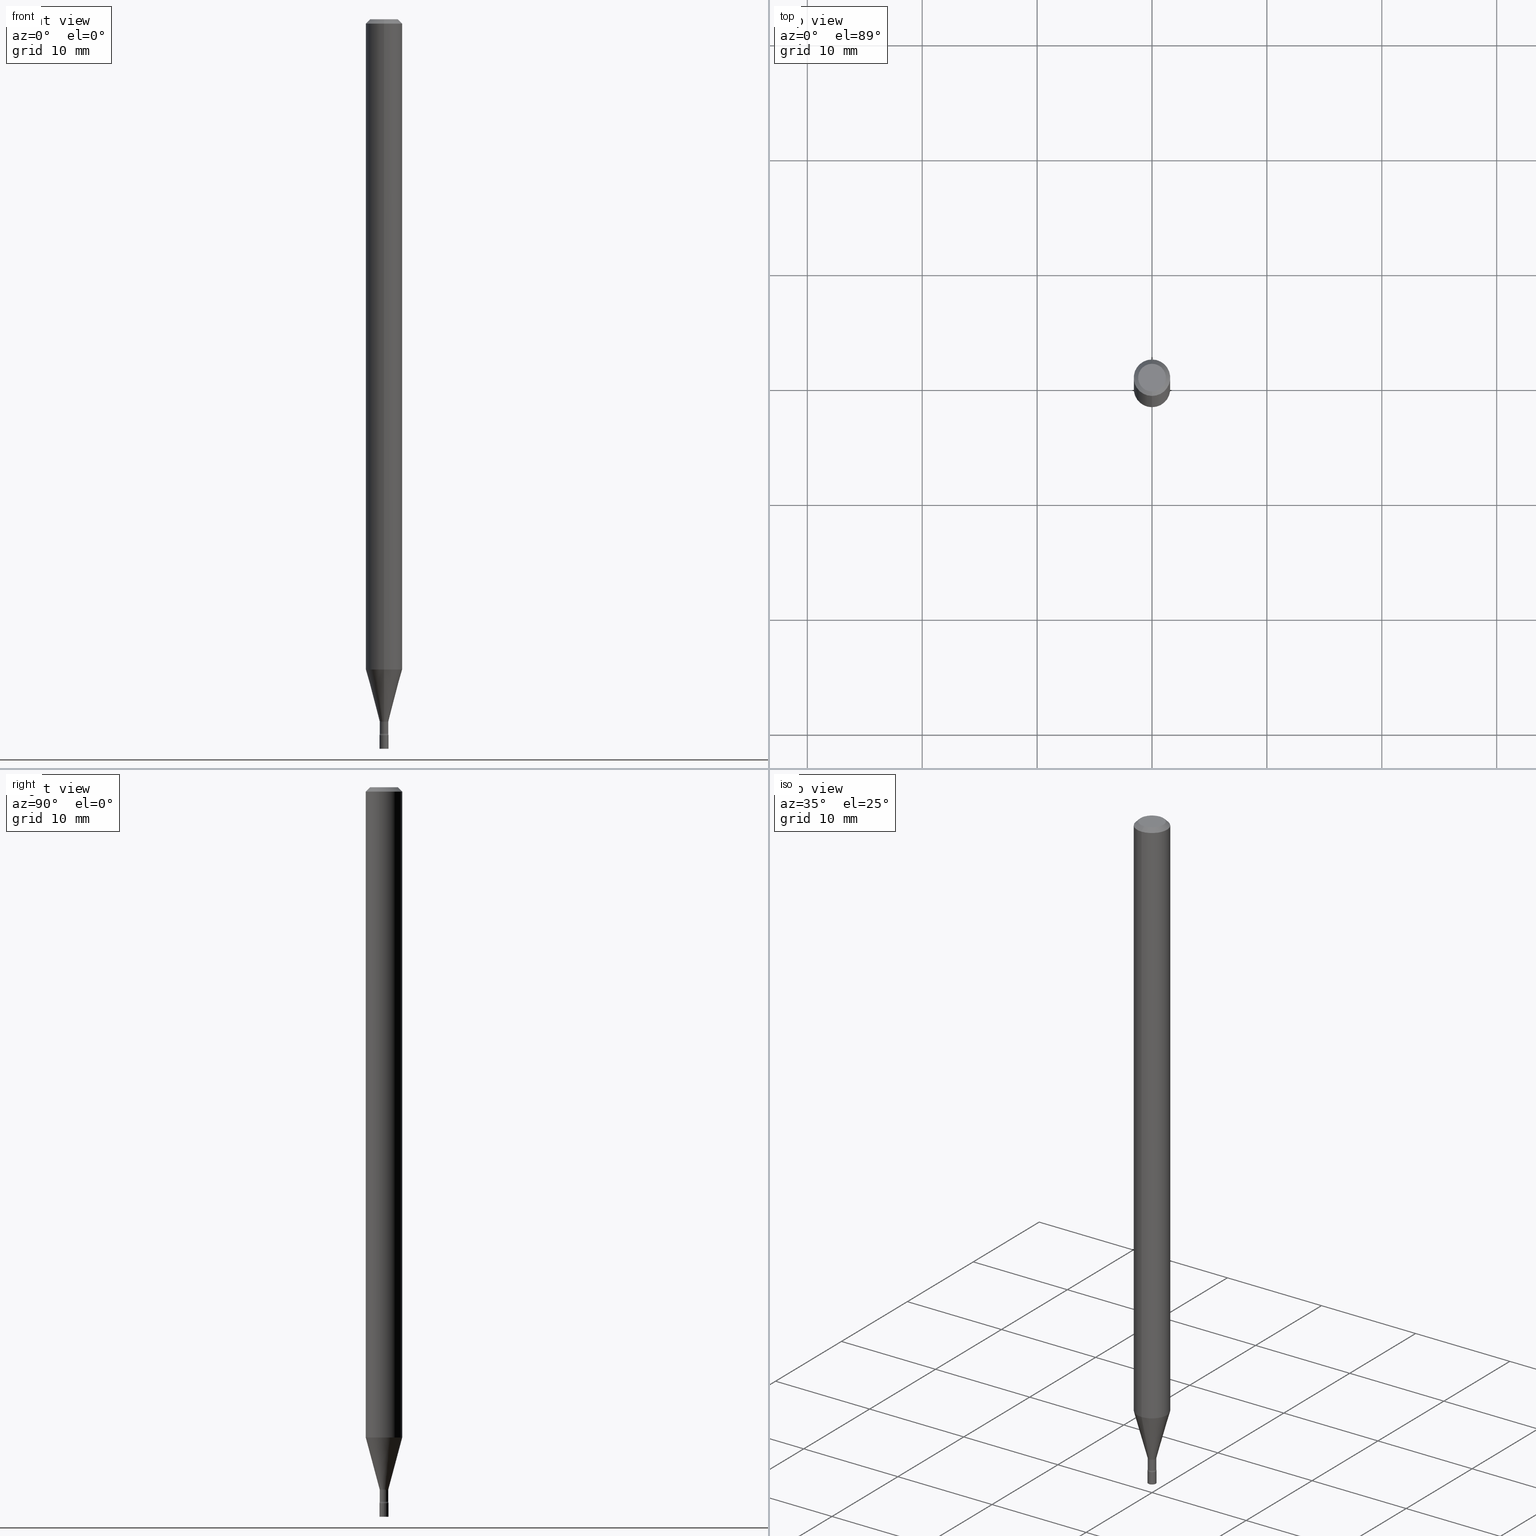
[diagram: canonical four-view strip — front | top / right | iso, engineering-drawing reading convention]
A machine part, canonical four-view strip (front | top / right | iso — engineering-drawing reading convention). The complete STEP part file that produces these views, byte-faithful:
ISO-10303-21;
HEADER;
FILE_DESCRIPTION (( 'STEP AP203' ),
    '1' );
FILE_NAME ('03513.STEP',
    '2024-03-08T21:36:42',
    ( '' ),
    ( '' ),
    'SwSTEP 2.0',
    'SolidWorks 2023',
    '' );
FILE_SCHEMA (( 'CONFIG_CONTROL_DESIGN' ));
ENDSEC;

DATA;
#1 = CIRCLE ( 'NONE', #208, 0.04749999999999999362 ) ;
#2 = CARTESIAN_POINT ( 'NONE',  ( 4.440892098500625669E-16, 0.06250000000000000000, -2.182170452178154301E-16 ) ) ;
#3 = EDGE_CURVE ( 'NONE', #130, #312, #444, .T. ) ;
#4 = DIRECTION ( 'NONE',  ( -2.445474822257542446E-29, 3.491472723485046881E-15, 1.000000000000000000 ) ) ;
#5 = APPROVAL_STATUS ( 'not_yet_approved' ) ;
#6 = ORIENTED_EDGE ( 'NONE', *, *, #464, .T. ) ;
#7 = CC_DESIGN_PERSON_AND_ORGANIZATION_ASSIGNMENT ( #296, #62, ( #203 ) ) ;
#8 = AXIS2_PLACEMENT_3D ( 'NONE', #186, #25, #350 ) ;
#9 = ORGANIZATION ( 'UNSPECIFIED', 'UNSPECIFIED', '' ) ;
#10 = LINE ( 'NONE', #487, #150 ) ;
#11 = ORIENTED_EDGE ( 'NONE', *, *, #328, .F. ) ;
#12 = ADVANCED_FACE ( 'NONE', ( #469 ), #112, .T. ) ;
#13 = PERSON_AND_ORGANIZATION ( #170, #9 ) ;
#14 = DIRECTION ( 'NONE',  ( -2.445474822257542446E-29, 3.491472723485046881E-15, 1.000000000000000000 ) ) ;
#15 = ORIENTED_EDGE ( 'NONE', *, *, #491, .F. ) ;
#16 = TOROIDAL_SURFACE ( 'NONE', #249, 0.02954999999999999988, 0.01500000000000002373 ) ;
#17 = CALENDAR_DATE ( 2024, 8, 3 ) ;
#18 = CYLINDRICAL_SURFACE ( 'NONE', #139, 0.01549999999999999989 ) ;
#19 = DIRECTION ( 'NONE',  ( 1.000000000000000000, -6.982962677686238312E-15, 0.000000000000000000 ) ) ;
#20 = EDGE_LOOP ( 'NONE', ( #212, #191 ) ) ;
#21 = PERSON_AND_ORGANIZATION_ROLE ( 'creator' ) ;
#22 = DIRECTION ( 'NONE',  ( -6.982962677686265922E-15, -1.000000000000000000, 0.000000000000000000 ) ) ;
#23 = VERTEX_POINT ( 'NONE', #157 ) ;
#24 = PERSON_AND_ORGANIZATION ( #170, #9 ) ;
#25 = DIRECTION ( 'NONE',  ( -2.445474822257542446E-29, 3.491472723485046881E-15, 1.000000000000000000 ) ) ;
#26 = CONICAL_SURFACE ( 'NONE', #318, 0.01506111260566398227, 0.2617993877991499074 ) ;
#27 = VECTOR ( 'NONE', #435, 39.37007874015748143 ) ;
#28 = VERTEX_POINT ( 'NONE', #408 ) ;
#29 = CARTESIAN_POINT ( 'NONE',  ( -1.051711872097229259E-16, -0.01506111260567238180, -2.405092501787273296 ) ) ;
#30 = ORIENTED_EDGE ( 'NONE', *, *, #519, .F. ) ;
#31 = DIRECTION ( 'NONE',  ( -6.982962677686265133E-15, -1.000000000000000000, 0.000000000000000000 ) ) ;
#32 = EDGE_CURVE ( 'NONE', #325, #179, #160, .T. ) ;
#33 = ORIENTED_EDGE ( 'NONE', *, *, #449, .T. ) ;
#34 = LINE ( 'NONE', #470, #356 ) ;
#35 = CIRCLE ( 'NONE', #462, 0.01455000000000000737 ) ;
#36 = DIRECTION ( 'NONE',  ( -6.982962677686265922E-15, -1.000000000000000000, 3.491472723485047276E-15 ) ) ;
#37 = LINE ( 'NONE', #155, #484 ) ;
#38 = EDGE_CURVE ( 'NONE', #370, #183, #90, .T. ) ;
#39 = DIRECTION ( 'NONE',  ( -6.982962677686265922E-15, -1.000000000000000000, 3.491472723485046881E-15 ) ) ;
#40 = CARTESIAN_POINT ( 'NONE',  ( 3.668212233386320885E-31, -5.237209085227580700E-17, -0.01500000000000003067 ) ) ;
#41 = DIRECTION ( 'NONE',  ( -2.445468806185136597E-29, 3.491481338843145583E-15, 1.000000000000000000 ) ) ;
#42 = APPLICATION_PROTOCOL_DEFINITION ( 'international standard', 'config_control_design', 1994, #343 ) ;
#43 = CIRCLE ( 'NONE', #451, 0.01549999999999999989 ) ;
#44 = APPLICATION_PROTOCOL_DEFINITION ( 'international standard', 'config_control_design', 1994, #46 ) ;
#45 = ADVANCED_FACE ( 'NONE', ( #280 ), #292, .F. ) ;
#46 = APPLICATION_CONTEXT ( 'configuration controlled 3d designs of mechanical parts and assemblies' ) ;
#47 = ORIENTED_EDGE ( 'NONE', *, *, #89, .F. ) ;
#48 = DIRECTION ( 'NONE',  ( 4.937700262164548042E-15, 0.7071067811865451302, -0.7071067811865499042 ) ) ;
#49 = AXIS2_PLACEMENT_3D ( 'NONE', #274, #354, #230 ) ;
#50 = AXIS2_PLACEMENT_3D ( 'NONE', #481, #441, #235 ) ;
#51 = ADVANCED_FACE ( 'NONE', ( #120 ), #317, .T. ) ;
#52 = ORIENTED_EDGE ( 'NONE', *, *, #136, .T. ) ;
#53 = FACE_OUTER_BOUND ( 'NONE', #341, .T. ) ;
#54 = ORIENTED_EDGE ( 'NONE', *, *, #387, .F. ) ;
#55 = APPROVAL_STATUS ( 'not_yet_approved' ) ;
#56 = DIRECTION ( 'NONE',  ( -2.445474822257542446E-29, 3.491472723485046881E-15, 1.000000000000000000 ) ) ;
#57 = VECTOR ( 'NONE', #360, 39.37007874015748143 ) ;
#58 = ADVANCED_FACE ( 'NONE', ( #404 ), #364, .T. ) ;
#59 = CC_DESIGN_APPROVAL ( #514, ( #203 ) ) ;
#60 = DIRECTION ( 'NONE',  ( -2.445468806185136597E-29, 3.491481338843145583E-15, 1.000000000000000000 ) ) ;
#61 = ORIENTED_EDGE ( 'NONE', *, *, #287, .T. ) ;
#62 = PERSON_AND_ORGANIZATION_ROLE ( 'design_supplier' ) ;
#63 = CARTESIAN_POINT ( 'NONE',  ( 5.998734981572139453E-29, -8.564603724182235719E-15, -2.452999999999999847 ) ) ;
#64 = APPROVAL ( #55, 'UNSPECIFIED' ) ;
#65 = VERTEX_POINT ( 'NONE', #518 ) ;
#66 = APPROVAL_DATE_TIME ( #134, #514 ) ;
#67 = DIRECTION ( 'NONE',  ( 2.445474822257542446E-29, -3.491472723485046487E-15, -1.000000000000000000 ) ) ;
#68 = ORIENTED_EDGE ( 'NONE', *, *, #243, .T. ) ;
#69 = CARTESIAN_POINT ( 'NONE',  ( -4.364351673553916201E-16, -0.06250000000000000000, 2.182170452178154301E-16 ) ) ;
#70 = AXIS2_PLACEMENT_3D ( 'NONE', #81, #363, #314 ) ;
#71 = AXIS2_PLACEMENT_3D ( 'NONE', #453, #283, #486 ) ;
#72 = EDGE_LOOP ( 'NONE', ( #95, #226, #510, #15 ) ) ;
#73 = FACE_OUTER_BOUND ( 'NONE', #309, .T. ) ;
#74 = ORIENTED_EDGE ( 'NONE', *, *, #358, .T. ) ;
#75 = DIRECTION ( 'NONE',  ( -1.000000000000000000, 6.982962677686265922E-15, -4.883557194083112340E-29 ) ) ;
#76 = CARTESIAN_POINT ( 'NONE',  ( 1.067590460480150075E-16, 0.01454999999999146212, -2.447746667724196357 ) ) ;
#77 = ADVANCED_FACE ( 'NONE', ( #83 ), #436, .F. ) ;
#78 = CARTESIAN_POINT ( 'NONE',  ( 5.881593158321180311E-29, -8.397314867448675411E-15, -2.405092501787273296 ) ) ;
#79 = AXIS2_PLACEMENT_3D ( 'NONE', #443, #236, #39 ) ;
#80 = APPROVAL_PERSON_ORGANIZATION ( #24, #514, #429 ) ;
#81 = CARTESIAN_POINT ( 'NONE',  ( 5.985888121363136129E-29, -8.546261812574526278E-15, -2.447746667724196357 ) ) ;
#82 = DIRECTION ( 'NONE',  ( -2.445474822257542446E-29, 3.491472723485046881E-15, 1.000000000000000000 ) ) ;
#83 = FACE_OUTER_BOUND ( 'NONE', #142, .T. ) ;
#84 = SECURITY_CLASSIFICATION ( '', '', #331 ) ;
#85 = APPROVAL ( #5, 'UNSPECIFIED' ) ;
#86 = APPROVAL_DATE_TIME ( #323, #85 ) ;
#87 = ORIENTED_EDGE ( 'NONE', *, *, #416, .T. ) ;
#88 = PERSON_AND_ORGANIZATION ( #170, #9 ) ;
#89 = EDGE_CURVE ( 'NONE', #422, #101, #192, .T. ) ;
#90 = CIRCLE ( 'NONE', #471, 0.01455000000000000217 ) ;
#91 = VERTEX_POINT ( 'NONE', #76 ) ;
#92 = AXIS2_PLACEMENT_3D ( 'NONE', #520, #75, #31 ) ;
#93 = AXIS2_PLACEMENT_3D ( 'NONE', #311, #197, #447 ) ;
#94 = APPROVAL_STATUS ( 'not_yet_approved' ) ;
#95 = ORIENTED_EDGE ( 'NONE', *, *, #245, .F. ) ;
#96 = CARTESIAN_POINT ( 'NONE',  ( 6.113672015462842613E-29, -8.728703347107864943E-15, -2.500000000000000000 ) ) ;
#97 = EDGE_CURVE ( 'NONE', #28, #23, #269, .T. ) ;
#98 = ORIENTED_EDGE ( 'NONE', *, *, #245, .T. ) ;
#99 = DATE_AND_TIME ( #290, #302 ) ;
#100 = CARTESIAN_POINT ( 'NONE',  ( 3.840629472727447874E-16, 0.04749999999999999362, -1.947592745229184119E-16 ) ) ;
#101 = VERTEX_POINT ( 'NONE', #215 ) ;
#102 = CONICAL_SURFACE ( 'NONE', #242, 0.01506111260566398227, 0.2617993877991499074 ) ;
#103 = COORDINATED_UNIVERSAL_TIME_OFFSET ( 5, 0, .BEHIND. ) ;
#104 = AXIS2_PLACEMENT_3D ( 'NONE', #210, #321, #415 ) ;
#105 = CC_DESIGN_PERSON_AND_ORGANIZATION_ASSIGNMENT ( #492, #247, ( #177 ) ) ;
#106 = CARTESIAN_POINT ( 'NONE',  ( -4.364351673553912750E-16, -0.06250000000000005551, -0.01499999999999981209 ) ) ;
#107 = EDGE_LOOP ( 'NONE', ( #189, #353, #400, #305 ) ) ;
#108 = DIRECTION ( 'NONE',  ( -2.445474822257542446E-29, 3.491472723485046881E-15, 1.000000000000000000 ) ) ;
#109 = DIRECTION ( 'NONE',  ( -6.982962677686268288E-15, -1.000000000000000000, 0.000000000000000000 ) ) ;
#110 = LINE ( 'NONE', #267, #27 ) ;
#111 = ADVANCED_FACE ( 'NONE', ( #255 ), #102, .T. ) ;
#112 = CYLINDRICAL_SURFACE ( 'NONE', #483, 0.01455000000000000390 ) ;
#113 = TOROIDAL_SURFACE ( 'NONE', #49, 0.02954999999999999988, 0.01500000000000002373 ) ;
#114 = CARTESIAN_POINT ( 'NONE',  ( 4.440892098501173434E-16, 0.06249999999999995143, -0.01500000000000024751 ) ) ;
#115 = CIRCLE ( 'NONE', #194, 0.01499999999999999424 ) ;
#116 = ORIENTED_EDGE ( 'NONE', *, *, #425, .T. ) ;
#117 = CYLINDRICAL_SURFACE ( 'NONE', #382, 0.01549999999999999989 ) ;
#118 = ORIENTED_EDGE ( 'NONE', *, *, #239, .T. ) ;
#119 = DIRECTION ( 'NONE',  ( -2.445468806185136877E-29, 3.491481338843145188E-15, 1.000000000000000000 ) ) ;
#120 = FACE_OUTER_BOUND ( 'NONE', #348, .T. ) ;
#121 = CARTESIAN_POINT ( 'NONE',  ( -3.773273898774340269E-16, -0.04749999999999999362, 1.369306342081609945E-16 ) ) ;
#122 = CARTESIAN_POINT ( 'NONE',  ( 5.998734981572139453E-29, -8.564603724182235719E-15, -2.452999999999999847 ) ) ;
#123 = LINE ( 'NONE', #448, #168 ) ;
#124 =( LENGTH_UNIT ( ) NAMED_UNIT ( * ) SI_UNIT ( $, .METRE. ) );
#125 = DIRECTION ( 'NONE',  ( 1.000000000000000000, 0.000000000000000000, 0.000000000000000000 ) ) ;
#126 = AXIS2_PLACEMENT_3D ( 'NONE', #276, #407, #232 ) ;
#127 = EDGE_CURVE ( 'NONE', #91, #130, #35, .T. ) ;
#128 = CARTESIAN_POINT ( 'NONE',  ( 5.448635687293979942E-29, -7.779169390438593115E-15, -2.228048163777072599 ) ) ;
#129 = ADVANCED_FACE ( 'NONE', ( #393 ), #500, .F. ) ;
#130 = VERTEX_POINT ( 'NONE', #135 ) ;
#131 = ORIENTED_EDGE ( 'NONE', *, *, #316, .F. ) ;
#132 = AXIS2_PLACEMENT_3D ( 'NONE', #198, #275, #361 ) ;
#133 = DIRECTION ( 'NONE',  ( 7.105427357600999492E-15, 1.000000000000000000, 0.000000000000000000 ) ) ;
#134 = DATE_AND_TIME ( #17, #496 ) ;
#135 = CARTESIAN_POINT ( 'NONE',  ( -1.016021069602753630E-16, -0.01455000000000855262, -2.447746667724196357 ) ) ;
#136 = EDGE_CURVE ( 'NONE', #312, #289, #216, .T. ) ;
#137 = CARTESIAN_POINT ( 'NONE',  ( 3.316907271900976096E-16, 0.04749999999999999362, -1.803021144442290575E-16 ) ) ;
#138 = ORIENTED_EDGE ( 'NONE', *, *, #376, .F. ) ;
#139 = AXIS2_PLACEMENT_3D ( 'NONE', #211, #426, #304 ) ;
#140 = VECTOR ( 'NONE', #164, 39.37007874015748143 ) ;
#141 = CARTESIAN_POINT ( 'NONE',  ( 1.033839680531544349E-16, 0.01454999999999158876, -2.408974787463811218 ) ) ;
#142 = EDGE_LOOP ( 'NONE', ( #379, #301, #169, #52 ) ) ;
#143 = EDGE_CURVE ( 'NONE', #463, #183, #405, .T. ) ;
#144 = PLANE ( 'NONE',  #300 ) ;
#145 = ORIENTED_EDGE ( 'NONE', *, *, #287, .F. ) ;
#146 = DIRECTION ( 'NONE',  ( -2.445474822257542446E-29, 3.491472723485046487E-15, 1.000000000000000000 ) ) ;
#147 = EDGE_LOOP ( 'NONE', ( #118, #6, #459, #131 ) ) ;
#148 = AXIS2_PLACEMENT_3D ( 'NONE', #319, #82, #475 ) ;
#149 = DIRECTION ( 'NONE',  ( -2.445474822257542446E-29, 3.491472723485046881E-15, 1.000000000000000000 ) ) ;
#150 = VECTOR ( 'NONE', #490, 39.37007874015748854 ) ;
#151 = ORIENTED_EDGE ( 'NONE', *, *, #97, .F. ) ;
#152 = CARTESIAN_POINT ( 'NONE',  ( 0.01549999999999999989, -8.836939268612002897E-15, -2.500000000000000000 ) ) ;
#153 = DIRECTION ( 'NONE',  ( -2.445474822257542446E-29, 3.491472723485046881E-15, 1.000000000000000000 ) ) ;
#154 = CC_DESIGN_DATE_AND_TIME_ASSIGNMENT ( #180, #220, ( #84 ) ) ;
#155 = CARTESIAN_POINT ( 'NONE',  ( -4.287811248607203282E-16, -0.06250000000000005551, -0.01499999999999981209 ) ) ;
#156 = MANIFOLD_SOLID_BREP ( 'Body-Move/Copy2[2]', #372 ) ;
#157 = CARTESIAN_POINT ( 'NONE',  ( 4.440892098501168504E-16, 0.06249999999999221456, -2.228048163777073043 ) ) ;
#158 = ADVANCED_FACE ( 'NONE', ( #461 ), #225, .T. ) ;
#159 = CARTESIAN_POINT ( 'NONE',  ( -0.01549999999999999989, -8.536519411602235887E-15, -2.452999999999999847 ) ) ;
#160 = CIRCLE ( 'NONE', #184, 0.06250000000000000000 ) ;
#161 = CONICAL_SURFACE ( 'NONE', #512, 0.06250000000000000000, 0.7853981633974483900 ) ;
#162 = AXIS2_PLACEMENT_3D ( 'NONE', #326, #418, #125 ) ;
#163 = DIRECTION ( 'NONE',  ( 1.000000000000000000, -7.105427357601001070E-15, 4.926315403034375454E-29 ) ) ;
#164 = DIRECTION ( 'NONE',  ( -2.445474822257542166E-29, 3.491472723485046487E-15, 1.000000000000000000 ) ) ;
#165 = CALENDAR_DATE ( 2024, 8, 3 ) ;
#166 = CIRCLE ( 'NONE', #270, 0.01455000000000000737 ) ;
#167 = EDGE_CURVE ( 'NONE', #130, #91, #166, .T. ) ;
#168 = VECTOR ( 'NONE', #48, 39.37007874015748143 ) ;
#169 = ORIENTED_EDGE ( 'NONE', *, *, #3, .T. ) ;
#170 = PERSON ( 'UNSPECIFIED', 'UNSPECIFIED', 'UNSPECIFIED', ('UNSPECIFIED'), ('UNSPECIFIED'), ('UNSPECIFIED') ) ;
#171 = EDGE_LOOP ( 'NONE', ( #229, #431, #116, #263 ) ) ;
#172 = DIRECTION ( 'NONE',  ( 6.982962677686265922E-15, 1.000000000000000000, -3.491472723485046487E-15 ) ) ;
#173 = CIRCLE ( 'NONE', #227, 0.01549999999999999989 ) ;
#174 = ORIENTED_EDGE ( 'NONE', *, *, #464, .F. ) ;
#175 = LOCAL_TIME ( 16, 36, 42.00000000000000000, #455 ) ;
#176 = DIRECTION ( 'NONE',  ( -6.982962677686265922E-15, -1.000000000000000000, 3.491472723485047276E-15 ) ) ;
#177 = PRODUCT_DEFINITION ( 'UNKNOWN', '', #203, #371 ) ;
#178 = CARTESIAN_POINT ( 'NONE',  ( 5.891072697629218951E-29, -8.410890516173528803E-15, -2.408974787463811218 ) ) ;
#179 = VERTEX_POINT ( 'NONE', #106 ) ;
#180 = DATE_AND_TIME ( #465, #334 ) ;
#181 = LINE ( 'NONE', #214, #445 ) ;
#182 = ADVANCED_FACE ( 'NONE', ( #505 ), #144, .T. ) ;
#183 = VERTEX_POINT ( 'NONE', #141 ) ;
#184 = AXIS2_PLACEMENT_3D ( 'NONE', #200, #153, #516 ) ;
#185 = AXIS2_PLACEMENT_3D ( 'NONE', #40, #403, #193 ) ;
#186 = CARTESIAN_POINT ( 'NONE',  ( 0.000000000000000000, 0.000000000000000000, 0.000000000000000000 ) ) ;
#187 = ORIENTED_EDGE ( 'NONE', *, *, #89, .T. ) ;
#188 = CYLINDRICAL_SURFACE ( 'NONE', #148, 0.01455000000000000390 ) ;
#189 = ORIENTED_EDGE ( 'NONE', *, *, #127, .F. ) ;
#190 = CARTESIAN_POINT ( 'NONE',  ( 0.000000000000000000, 0.000000000000000000, 0.000000000000000000 ) ) ;
#191 = ORIENTED_EDGE ( 'NONE', *, *, #416, .F. ) ;
#192 = CIRCLE ( 'NONE', #488, 0.01549999999999999989 ) ;
#193 = DIRECTION ( 'NONE',  ( -6.982962677686265922E-15, -1.000000000000000000, 3.483106191921935554E-15 ) ) ;
#194 = AXIS2_PLACEMENT_3D ( 'NONE', #282, #163, #450 ) ;
#195 = DIRECTION ( 'NONE',  ( -6.982962677686266711E-15, -1.000000000000000000, 0.000000000000000000 ) ) ;
#196 = ADVANCED_FACE ( 'NONE', ( #265 ), #297, .T. ) ;
#197 = DIRECTION ( 'NONE',  ( -2.445468806185136597E-29, 3.491481338843145583E-15, 1.000000000000000000 ) ) ;
#198 = CARTESIAN_POINT ( 'NONE',  ( 3.668212233386320885E-31, -5.237209085227580700E-17, -0.01500000000000003067 ) ) ;
#199 = FACE_OUTER_BOUND ( 'NONE', #402, .T. ) ;
#200 = CARTESIAN_POINT ( 'NONE',  ( 3.668212233386320885E-31, -5.237209085227580700E-17, -0.01500000000000003067 ) ) ;
#201 = EDGE_CURVE ( 'NONE', #101, #422, #173, .T. ) ;
#202 = AXIS2_PLACEMENT_3D ( 'NONE', #298, #218, #133 ) ;
#203 = PRODUCT_DEFINITION_FORMATION_WITH_SPECIFIED_SOURCE ( 'ANY', '', #460, .NOT_KNOWN. ) ;
#204 = PERSON_AND_ORGANIZATION ( #170, #9 ) ;
#205 = ADVANCED_FACE ( 'NONE', ( #53 ), #18, .T. ) ;
#206 = EDGE_LOOP ( 'NONE', ( #251, #217, #61, #30 ) ) ;
#207 = LINE ( 'NONE', #2, #140 ) ;
#208 = AXIS2_PLACEMENT_3D ( 'NONE', #390, #108, #381 ) ;
#209 = ADVANCED_FACE ( 'NONE', ( #466 ), #161, .T. ) ;
#210 = CARTESIAN_POINT ( 'NONE',  ( 5.891087190195964940E-29, -8.410869761993084079E-15, -2.408974787463811218 ) ) ;
#211 = CARTESIAN_POINT ( 'NONE',  ( 0.000000000000000000, 0.000000000000000000, 0.000000000000000000 ) ) ;
#212 = ORIENTED_EDGE ( 'NONE', *, *, #239, .F. ) ;
#213 = PERSON_AND_ORGANIZATION ( #170, #9 ) ;
#214 = CARTESIAN_POINT ( 'NONE',  ( 1.033839680530945924E-16, 0.01455000000000000390, -5.080092812670745261E-17 ) ) ;
#215 = CARTESIAN_POINT ( 'NONE',  ( 0.01549999999999999989, -8.672839645686373673E-15, -2.452999999999999847 ) ) ;
#216 = CIRCLE ( 'NONE', #413, 0.01549999999999999989 ) ;
#217 = ORIENTED_EDGE ( 'NONE', *, *, #433, .T. ) ;
#218 = DIRECTION ( 'NONE',  ( 1.000000000000000000, -7.105427357601001070E-15, 4.926315403034375454E-29 ) ) ;
#219 = ORIENTED_EDGE ( 'NONE', *, *, #143, .T. ) ;
#220 = DATE_TIME_ROLE ( 'classification_date' ) ;
#221 = DIRECTION ( 'NONE',  ( 6.982962677686265922E-15, 1.000000000000000000, -3.483106191921935554E-15 ) ) ;
#222 = ADVANCED_FACE ( 'NONE', ( #332 ), #16, .F. ) ;
#223 = ORIENTED_EDGE ( 'NONE', *, *, #491, .T. ) ;
#224 = CALENDAR_DATE ( 2024, 8, 3 ) ;
#225 = CYLINDRICAL_SURFACE ( 'NONE', #8, 0.06250000000000000000 ) ;
#226 = ORIENTED_EDGE ( 'NONE', *, *, #387, .T. ) ;
#227 = AXIS2_PLACEMENT_3D ( 'NONE', #421, #497, #19 ) ;
#228 = PLANE ( 'NONE',  #427 ) ;
#229 = ORIENTED_EDGE ( 'NONE', *, *, #243, .F. ) ;
#230 = DIRECTION ( 'NONE',  ( -6.982962677686265922E-15, -1.000000000000000000, 3.491472723485047276E-15 ) ) ;
#231 = VERTEX_POINT ( 'NONE', #100 ) ;
#232 = DIRECTION ( 'NONE',  ( -6.982962677686265922E-15, -1.000000000000000000, 0.000000000000000000 ) ) ;
#233 = CARTESIAN_POINT ( 'NONE',  ( 5.448635687293979942E-29, -7.779169390438593115E-15, -2.228048163777072599 ) ) ;
#234 = AXIS2_PLACEMENT_3D ( 'NONE', #482, #411, #36 ) ;
#235 = DIRECTION ( 'NONE',  ( -6.982962677686266711E-15, -1.000000000000000000, 3.491472723485046881E-15 ) ) ;
#236 = DIRECTION ( 'NONE',  ( -2.445474822257542446E-29, 3.491472723485046881E-15, 1.000000000000000000 ) ) ;
#237 = LINE ( 'NONE', #29, #57 ) ;
#238 = CARTESIAN_POINT ( 'NONE',  ( 5.881593158321180311E-29, -8.397314867448675411E-15, -2.405092501787273296 ) ) ;
#239 = EDGE_CURVE ( 'NONE', #335, #417, #43, .T. ) ;
#240 = DIRECTION ( 'NONE',  ( -2.445474822257542446E-29, 3.491472723485046881E-15, 1.000000000000000000 ) ) ;
#241 = LENGTH_MEASURE_WITH_UNIT ( LENGTH_MEASURE( 0.02539999999999999897 ), #124 );
#242 = AXIS2_PLACEMENT_3D ( 'NONE', #238, #479, #386 ) ;
#243 = EDGE_CURVE ( 'NONE', #91, #183, #181, .T. ) ;
#244 = DIRECTION ( 'NONE',  ( -2.445468806185136877E-29, 3.491481338843145188E-15, 1.000000000000000000 ) ) ;
#245 = EDGE_CURVE ( 'NONE', #355, #231, #1, .T. ) ;
#246 = ORIENTED_EDGE ( 'NONE', *, *, #425, .F. ) ;
#247 = PERSON_AND_ORGANIZATION_ROLE ( 'creator' ) ;
#248 = ADVANCED_FACE ( 'NONE', ( #338 ), #117, .T. ) ;
#249 = AXIS2_PLACEMENT_3D ( 'NONE', #178, #254, #176 ) ;
#250 = CIRCLE ( 'NONE', #320, 0.06250000000000000000 ) ;
#251 = ORIENTED_EDGE ( 'NONE', *, *, #503, .F. ) ;
#252 = CARTESIAN_POINT ( 'NONE',  ( 1.082359215041982407E-16, 0.01549999999999127076, -2.500000000000000000 ) ) ;
#253 = ORIENTED_EDGE ( 'NONE', *, *, #376, .T. ) ;
#254 = DIRECTION ( 'NONE',  ( -2.445474822257542446E-29, 3.491472723485046881E-15, 1.000000000000000000 ) ) ;
#255 = FACE_OUTER_BOUND ( 'NONE', #474, .T. ) ;
#256 = ORIENTED_EDGE ( 'NONE', *, *, #433, .F. ) ;
#257 = DIRECTION ( 'NONE',  ( 2.445474822257542446E-29, -3.491472723485046881E-15, -1.000000000000000000 ) ) ;
#258 = AXIS2_PLACEMENT_3D ( 'NONE', #137, #67, #172 ) ;
#259 = ORIENTED_EDGE ( 'NONE', *, *, #167, .T. ) ;
#260 = APPROVAL_PERSON_ORGANIZATION ( #344, #64, #456 ) ;
#261 = ADVANCED_FACE ( 'NONE', ( #73 ), #188, .T. ) ;
#262 = DIRECTION ( 'NONE',  ( -2.445474822257542446E-29, 3.491472723485046881E-15, 1.000000000000000000 ) ) ;
#263 = ORIENTED_EDGE ( 'NONE', *, *, #485, .F. ) ;
#264 = ADVANCED_BREP_SHAPE_REPRESENTATION ( '03513', ( #339, #156, #162 ), #310 ) ;
#265 = FACE_OUTER_BOUND ( 'NONE', #20, .T. ) ;
#266 = ORIENTED_EDGE ( 'NONE', *, *, #278, .T. ) ;
#267 = CARTESIAN_POINT ( 'NONE',  ( -1.016021069603352055E-16, -0.01455000000000000390, 5.080092812670745261E-17 ) ) ;
#268 = CARTESIAN_POINT ( 'NONE',  ( 0.000000000000000000, 0.000000000000000000, 0.000000000000000000 ) ) ;
#269 = CIRCLE ( 'NONE', #324, 0.06250000000000000000 ) ;
#270 = AXIS2_PLACEMENT_3D ( 'NONE', #507, #262, #22 ) ;
#271 = CC_DESIGN_SECURITY_CLASSIFICATION ( #84, ( #203 ) ) ;
#272 = DIRECTION ( 'NONE',  ( -2.445468806185136597E-29, 3.491481338843145583E-15, 1.000000000000000000 ) ) ;
#273 = DIRECTION ( 'NONE',  ( -1.000000000000000000, 6.982962677686265922E-15, -4.883557194083112340E-29 ) ) ;
#274 = CARTESIAN_POINT ( 'NONE',  ( 5.891072697629218951E-29, -8.410890516173528803E-15, -2.408974787463811218 ) ) ;
#275 = DIRECTION ( 'NONE',  ( 2.445474822257542446E-29, -3.491472723485046881E-15, -1.000000000000000000 ) ) ;
#276 = CARTESIAN_POINT ( 'NONE',  ( 5.998749738997751028E-29, -8.564582590708820271E-15, -2.452999999999999847 ) ) ;
#277 = DIRECTION ( 'NONE',  ( -6.982962677686266711E-15, -1.000000000000000000, 3.491472723485047276E-15 ) ) ;
#278 = EDGE_CURVE ( 'NONE', #28, #179, #509, .T. ) ;
#279 = CARTESIAN_POINT ( 'NONE',  ( -1.016021069602762751E-16, -0.01455000000000841384, -2.408974787463811218 ) ) ;
#280 = FACE_OUTER_BOUND ( 'NONE', #107, .T. ) ;
#281 =( CONVERSION_BASED_UNIT ( 'INCH', #241 ) LENGTH_UNIT ( ) NAMED_UNIT ( #472 ) );
#282 = CARTESIAN_POINT ( 'NONE',  ( 2.099653784171694835E-16, 0.02954999999999145810, -2.447746667724196357 ) ) ;
#283 = DIRECTION ( 'NONE',  ( -2.445474822257542446E-29, 3.491472723485046881E-15, 1.000000000000000000 ) ) ;
#284 = VECTOR ( 'NONE', #399, 39.37007874015748143 ) ;
#285 = CIRCLE ( 'NONE', #71, 0.01506111260566398227 ) ;
#286 = DIRECTION ( 'NONE',  ( -6.982962677686265922E-15, -1.000000000000000000, 4.370956789862821150E-15 ) ) ;
#287 = EDGE_CURVE ( 'NONE', #65, #28, #237, .T. ) ;
#288 =( NAMED_UNIT ( * ) PLANE_ANGLE_UNIT ( ) SI_UNIT ( $, .RADIAN. ) );
#289 = VERTEX_POINT ( 'NONE', #352 ) ;
#290 = CALENDAR_DATE ( 2024, 8, 3 ) ;
#291 = ADVANCED_FACE ( 'NONE', ( #199 ), #113, .F. ) ;
#292 = TOROIDAL_SURFACE ( 'NONE', #70, 0.02955000000000000335, 0.01499999999999999771 ) ;
#293 = CIRCLE ( 'NONE', #104, 0.01455000000000000217 ) ;
#294 = ORIENTED_EDGE ( 'NONE', *, *, #32, .F. ) ;
#295 = CARTESIAN_POINT ( 'NONE',  ( 5.985902847184320644E-29, -8.546240724360448056E-15, -2.447746667724196357 ) ) ;
#296 = PERSON_AND_ORGANIZATION ( #170, #9 ) ;
#297 = PLANE ( 'NONE',  #374 ) ;
#298 = CARTESIAN_POINT ( 'NONE',  ( 2.099653784171684728E-16, 0.02954999999999158994, -2.408974787463811218 ) ) ;
#299 = PRODUCT_DEFINITION_SHAPE ( 'NONE', 'NONE',  #177 ) ;
#300 = AXIS2_PLACEMENT_3D ( 'NONE', #63, #306, #468 ) ;
#301 = ORIENTED_EDGE ( 'NONE', *, *, #167, .F. ) ;
#302 = LOCAL_TIME ( 16, 36, 42.00000000000000000, #392 ) ;
#303 = PRODUCT_RELATED_PRODUCT_CATEGORY ( 'detail', '', ( #460 ) ) ;
#304 = DIRECTION ( 'NONE',  ( 1.000000000000000000, -6.982962677686266711E-15, 4.876176775795935232E-29 ) ) ;
#305 = ORIENTED_EDGE ( 'NONE', *, *, #3, .F. ) ;
#306 = DIRECTION ( 'NONE',  ( -2.438088387897960049E-29, 3.491481338843145188E-15, 1.000000000000000000 ) ) ;
#307 = EDGE_LOOP ( 'NONE', ( #397, #454, #266, #294 ) ) ;
#308 = DIRECTION ( 'NONE',  ( -6.982962677686265922E-15, -1.000000000000000000, 3.491472723485046487E-15 ) ) ;
#309 = EDGE_LOOP ( 'NONE', ( #259, #68, #504, #246 ) ) ;
#310 =( GEOMETRIC_REPRESENTATION_CONTEXT ( 3 ) GLOBAL_UNCERTAINTY_ASSIGNED_CONTEXT ( ( #495 ) ) GLOBAL_UNIT_ASSIGNED_CONTEXT ( ( #281, #288, #414 ) ) REPRESENTATION_CONTEXT ( 'NONE', 'WORKASPACE' ) );
#311 = CARTESIAN_POINT ( 'NONE',  ( 6.113672015462842613E-29, -8.728703347107864943E-15, -2.500000000000000000 ) ) ;
#312 = VERTEX_POINT ( 'NONE', #517 ) ;
#313 = DIRECTION ( 'NONE',  ( -6.982962677686266711E-15, -1.000000000000000000, 0.000000000000000000 ) ) ;
#314 = DIRECTION ( 'NONE',  ( -6.982962677686265922E-15, -1.000000000000000000, 3.491472723485047276E-15 ) ) ;
#315 = ADVANCED_FACE ( 'NONE', ( #511 ), #228, .F. ) ;
#316 = EDGE_CURVE ( 'NONE', #335, #101, #34, .T. ) ;
#317 = CYLINDRICAL_SURFACE ( 'NONE', #79, 0.06250000000000000000 ) ;
#318 = AXIS2_PLACEMENT_3D ( 'NONE', #357, #515, #401 ) ;
#319 = CARTESIAN_POINT ( 'NONE',  ( 0.000000000000000000, 0.000000000000000000, 0.000000000000000000 ) ) ;
#320 = AXIS2_PLACEMENT_3D ( 'NONE', #128, #452, #322 ) ;
#321 = DIRECTION ( 'NONE',  ( -2.445474822257542446E-29, 3.491472723485046881E-15, 1.000000000000000000 ) ) ;
#322 = DIRECTION ( 'NONE',  ( -6.982962677686265922E-15, -1.000000000000000000, 4.370956789862821150E-15 ) ) ;
#323 = DATE_AND_TIME ( #165, #175 ) ;
#324 = AXIS2_PLACEMENT_3D ( 'NONE', #233, #4, #286 ) ;
#325 = VERTEX_POINT ( 'NONE', #114 ) ;
#326 = CARTESIAN_POINT ( 'NONE',  ( 0.000000000000000000, 0.000000000000000000, 0.000000000000000000 ) ) ;
#327 = ORIENTED_EDGE ( 'NONE', *, *, #396, .T. ) ;
#328 = EDGE_CURVE ( 'NONE', #289, #312, #333, .T. ) ;
#329 = PERSON_AND_ORGANIZATION_ROLE ( 'classification_officer' ) ;
#330 = ORIENTED_EDGE ( 'NONE', *, *, #503, .T. ) ;
#331 = SECURITY_CLASSIFICATION_LEVEL ( 'unclassified' ) ;
#332 = FACE_OUTER_BOUND ( 'NONE', #434, .T. ) ;
#333 = CIRCLE ( 'NONE', #126, 0.01549999999999999989 ) ;
#334 = LOCAL_TIME ( 16, 36, 42.00000000000000000, #103 ) ;
#335 = VERTEX_POINT ( 'NONE', #152 ) ;
#336 = DATE_TIME_ROLE ( 'creation_date' ) ;
#337 = EDGE_CURVE ( 'NONE', #179, #325, #347, .T. ) ;
#338 = FACE_OUTER_BOUND ( 'NONE', #147, .T. ) ;
#339 = MANIFOLD_SOLID_BREP ( 'Body-Move/Copy2[1]', #394 ) ;
#340 = DIRECTION ( 'NONE',  ( -2.445474822257542166E-29, 3.491472723485046487E-15, 1.000000000000000000 ) ) ;
#341 = EDGE_LOOP ( 'NONE', ( #174, #87, #351, #47 ) ) ;
#342 = CC_DESIGN_PERSON_AND_ORGANIZATION_ASSIGNMENT ( #213, #21, ( #203 ) ) ;
#343 = APPLICATION_CONTEXT ( 'configuration controlled 3d designs of mechanical parts and assemblies' ) ;
#344 = PERSON_AND_ORGANIZATION ( #170, #9 ) ;
#345 = DIRECTION ( 'NONE',  ( -6.982962677686265922E-15, -1.000000000000000000, 0.000000000000000000 ) ) ;
#346 = AXIS2_PLACEMENT_3D ( 'NONE', #467, #273, #109 ) ;
#347 = CIRCLE ( 'NONE', #185, 0.06250000000000000000 ) ;
#348 = EDGE_LOOP ( 'NONE', ( #388, #33, #476, #513 ) ) ;
#349 = ADVANCED_FACE ( 'NONE', ( #440 ), #26, .T. ) ;
#350 = DIRECTION ( 'NONE',  ( -6.982962677686265922E-15, -1.000000000000000000, 3.491472723485046881E-15 ) ) ;
#351 = ORIENTED_EDGE ( 'NONE', *, *, #316, .T. ) ;
#352 = CARTESIAN_POINT ( 'NONE',  ( 1.101341240428755184E-16, 0.01549999999999143729, -2.452999999999999847 ) ) ;
#353 = ORIENTED_EDGE ( 'NONE', *, *, #477, .T. ) ;
#354 = DIRECTION ( 'NONE',  ( -2.445474822257542446E-29, 3.491472723485046881E-15, 1.000000000000000000 ) ) ;
#355 = VERTEX_POINT ( 'NONE', #121 ) ;
#356 = VECTOR ( 'NONE', #119, 39.37007874015748143 ) ;
#357 = CARTESIAN_POINT ( 'NONE',  ( 5.881593158321180311E-29, -8.397314867448675411E-15, -2.405092501787273296 ) ) ;
#358 = EDGE_CURVE ( 'NONE', #65, #370, #419, .T. ) ;
#359 = DIRECTION ( 'NONE',  ( 1.000000000000000000, -6.982962677686238312E-15, 0.000000000000000000 ) ) ;
#360 = DIRECTION ( 'NONE',  ( -1.807323732225327773E-15, -0.2588190451025178529, 0.9659258262890690894 ) ) ;
#361 = DIRECTION ( 'NONE',  ( 6.982962677686265922E-15, 1.000000000000000000, -3.483106191921935554E-15 ) ) ;
#362 = CARTESIAN_POINT ( 'NONE',  ( -0.01549999999999999989, -8.536519411602235887E-15, -2.500000000000000000 ) ) ;
#363 = DIRECTION ( 'NONE',  ( -2.445474822257542446E-29, 3.491472723485046881E-15, 1.000000000000000000 ) ) ;
#364 = CONICAL_SURFACE ( 'NONE', #132, 0.06250000000000000000, 0.7853981633974483900 ) ;
#365 = LINE ( 'NONE', #377, #366 ) ;
#366 = VECTOR ( 'NONE', #244, 39.37007874015748143 ) ;
#367 = APPROVAL_ROLE ( '' ) ;
#368 = CC_DESIGN_DATE_AND_TIME_ASSIGNMENT ( #99, #336, ( #177 ) ) ;
#369 = PERSON_AND_ORGANIZATION_ROLE ( 'design_owner' ) ;
#370 = VERTEX_POINT ( 'NONE', #279 ) ;
#371 = DESIGN_CONTEXT ( 'detailed design', #46, 'design' ) ;
#372 = CLOSED_SHELL ( 'NONE', ( #291, #261, #45, #209, #51, #111, #349, #158, #58, #129, #315, #77, #12, #222 ) ) ;
#373 = CARTESIAN_POINT ( 'NONE',  ( 2.755524256971851785E-16, 0.01506111260565558621, -2.405092501787273296 ) ) ;
#374 = AXIS2_PLACEMENT_3D ( 'NONE', #252, #458, #430 ) ;
#375 = CIRCLE ( 'NONE', #50, 0.04749999999999999362 ) ;
#376 = EDGE_CURVE ( 'NONE', #65, #463, #395, .T. ) ;
#377 = CARTESIAN_POINT ( 'NONE',  ( -0.01549999999999999989, 1.101341240428155280E-16, -7.624349389895103058E-31 ) ) ;
#378 = CARTESIAN_POINT ( 'NONE',  ( 3.668212233386320885E-31, -5.237209085227580700E-17, -0.01500000000000003067 ) ) ;
#379 = ORIENTED_EDGE ( 'NONE', *, *, #477, .F. ) ;
#380 = SHAPE_DEFINITION_REPRESENTATION ( #299, #264 ) ;
#381 = DIRECTION ( 'NONE',  ( -6.982962677686266711E-15, -1.000000000000000000, 3.491472723485046881E-15 ) ) ;
#382 = AXIS2_PLACEMENT_3D ( 'NONE', #190, #272, #438 ) ;
#383 = CIRCLE ( 'NONE', #93, 0.01549999999999999989 ) ;
#384 = ORIENTED_EDGE ( 'NONE', *, *, #136, .F. ) ;
#385 = APPROVAL_DATE_TIME ( #389, #64 ) ;
#386 = DIRECTION ( 'NONE',  ( -6.982962677686266711E-15, -1.000000000000000000, 0.000000000000000000 ) ) ;
#387 = EDGE_CURVE ( 'NONE', #355, #179, #37, .T. ) ;
#388 = ORIENTED_EDGE ( 'NONE', *, *, #97, .T. ) ;
#389 = DATE_AND_TIME ( #224, #473 ) ;
#390 = CARTESIAN_POINT ( 'NONE',  ( 7.070924194756336166E-46, -1.009535601476015947E-31, -2.891432015737870254E-17 ) ) ;
#391 = EDGE_LOOP ( 'NONE', ( #424, #187 ) ) ;
#392 = COORDINATED_UNIVERSAL_TIME_OFFSET ( 5, 0, .BEHIND. ) ;
#393 = FACE_OUTER_BOUND ( 'NONE', #508, .T. ) ;
#394 = CLOSED_SHELL ( 'NONE', ( #248, #182, #205, #196 ) ) ;
#395 = CIRCLE ( 'NONE', #406, 0.01506111260566398227 ) ;
#396 = EDGE_CURVE ( 'NONE', #231, #355, #375, .T. ) ;
#397 = ORIENTED_EDGE ( 'NONE', *, *, #449, .F. ) ;
#398 = APPROVAL_PERSON_ORGANIZATION ( #204, #85, #367 ) ;
#399 = DIRECTION ( 'NONE',  ( -2.445474822257542166E-29, 3.491472723485046487E-15, 1.000000000000000000 ) ) ;
#400 = ORIENTED_EDGE ( 'NONE', *, *, #328, .T. ) ;
#401 = DIRECTION ( 'NONE',  ( -6.982962677686266711E-15, -1.000000000000000000, 0.000000000000000000 ) ) ;
#402 = EDGE_LOOP ( 'NONE', ( #256, #219, #493, #437 ) ) ;
#403 = DIRECTION ( 'NONE',  ( -2.445474822257542446E-29, 3.491472723485046881E-15, 1.000000000000000000 ) ) ;
#404 = FACE_OUTER_BOUND ( 'NONE', #457, .T. ) ;
#405 = CIRCLE ( 'NONE', #202, 0.01500000000000002373 ) ;
#406 = AXIS2_PLACEMENT_3D ( 'NONE', #78, #149, #313 ) ;
#407 = DIRECTION ( 'NONE',  ( -2.445474822257542446E-29, 3.491472723485046881E-15, 1.000000000000000000 ) ) ;
#408 = CARTESIAN_POINT ( 'NONE',  ( -4.364351673553372873E-16, -0.06250000000000779932, -2.228048163777072599 ) ) ;
#409 = CC_DESIGN_PERSON_AND_ORGANIZATION_ASSIGNMENT ( #88, #369, ( #460 ) ) ;
#410 = CARTESIAN_POINT ( 'NONE',  ( 1.082359215041971067E-16, 0.01549999999999143382, -2.452999999999999847 ) ) ;
#411 = DIRECTION ( 'NONE',  ( -2.445474822257542446E-29, 3.491472723485046881E-15, 1.000000000000000000 ) ) ;
#412 = MECHANICAL_CONTEXT ( 'NONE', #343, 'mechanical' ) ;
#413 = AXIS2_PLACEMENT_3D ( 'NONE', #432, #14, #345 ) ;
#414 =( NAMED_UNIT ( * ) SI_UNIT ( $, .STERADIAN. ) SOLID_ANGLE_UNIT ( ) );
#415 = DIRECTION ( 'NONE',  ( -6.982962677686266711E-15, -1.000000000000000000, 0.000000000000000000 ) ) ;
#416 = EDGE_CURVE ( 'NONE', #417, #335, #383, .T. ) ;
#417 = VERTEX_POINT ( 'NONE', #362 ) ;
#418 = DIRECTION ( 'NONE',  ( 0.000000000000000000, 0.000000000000000000, 1.000000000000000000 ) ) ;
#419 = CIRCLE ( 'NONE', #92, 0.01500000000000002373 ) ;
#420 = COORDINATED_UNIVERSAL_TIME_OFFSET ( 5, 0, .BEHIND. ) ;
#421 = CARTESIAN_POINT ( 'NONE',  ( 5.998734981572139453E-29, -8.564603724182235719E-15, -2.452999999999999847 ) ) ;
#422 = VERTEX_POINT ( 'NONE', #159 ) ;
#423 = DIRECTION ( 'NONE',  ( 1.000000000000000000, -6.982962677686301420E-15, 0.000000000000000000 ) ) ;
#424 = ORIENTED_EDGE ( 'NONE', *, *, #201, .T. ) ;
#425 = EDGE_CURVE ( 'NONE', #130, #370, #110, .T. ) ;
#426 = DIRECTION ( 'NONE',  ( -2.445468806185136597E-29, 3.491481338843145583E-15, 1.000000000000000000 ) ) ;
#427 = AXIS2_PLACEMENT_3D ( 'NONE', #410, #146, #308 ) ;
#428 = ORIENTED_EDGE ( 'NONE', *, *, #396, .F. ) ;
#429 = APPROVAL_ROLE ( '' ) ;
#430 = DIRECTION ( 'NONE',  ( -1.000000000000000000, 6.982962677686265922E-15, -4.876176775795935793E-29 ) ) ;
#431 = ORIENTED_EDGE ( 'NONE', *, *, #127, .T. ) ;
#432 = CARTESIAN_POINT ( 'NONE',  ( 5.998749738997751028E-29, -8.564582590708820271E-15, -2.452999999999999847 ) ) ;
#433 = EDGE_CURVE ( 'NONE', #463, #65, #285, .T. ) ;
#434 = EDGE_LOOP ( 'NONE', ( #506, #138, #74, #498 ) ) ;
#435 = DIRECTION ( 'NONE',  ( -2.445474822257542166E-29, 3.491472723485046487E-15, 1.000000000000000000 ) ) ;
#436 = TOROIDAL_SURFACE ( 'NONE', #234, 0.02955000000000000335, 0.01499999999999999771 ) ;
#437 = ORIENTED_EDGE ( 'NONE', *, *, #358, .F. ) ;
#438 = DIRECTION ( 'NONE',  ( 1.000000000000000000, -6.982962677686266711E-15, 4.876176775795935232E-29 ) ) ;
#439 = DIRECTION ( 'NONE',  ( -2.445474822257542446E-29, 3.491472723485046881E-15, 1.000000000000000000 ) ) ;
#440 = FACE_OUTER_BOUND ( 'NONE', #206, .T. ) ;
#441 = DIRECTION ( 'NONE',  ( -2.445474822257542446E-29, 3.491472723485046881E-15, 1.000000000000000000 ) ) ;
#442 = CC_DESIGN_PERSON_AND_ORGANIZATION_ASSIGNMENT ( #13, #329, ( #84 ) ) ;
#443 = CARTESIAN_POINT ( 'NONE',  ( 0.000000000000000000, 0.000000000000000000, 0.000000000000000000 ) ) ;
#444 = CIRCLE ( 'NONE', #346, 0.01499999999999999424 ) ;
#445 = VECTOR ( 'NONE', #340, 39.37007874015748143 ) ;
#446 = CC_DESIGN_APPROVAL ( #85, ( #177 ) ) ;
#447 = DIRECTION ( 'NONE',  ( 1.000000000000000000, -6.982962677686301420E-15, 0.000000000000000000 ) ) ;
#448 = CARTESIAN_POINT ( 'NONE',  ( 4.364351673553919652E-16, 0.06249999999999995143, -0.01500000000000024751 ) ) ;
#449 = EDGE_CURVE ( 'NONE', #23, #325, #207, .T. ) ;
#450 = DIRECTION ( 'NONE',  ( 7.105427357601003436E-15, 1.000000000000000000, 0.000000000000000000 ) ) ;
#451 = AXIS2_PLACEMENT_3D ( 'NONE', #96, #60, #423 ) ;
#452 = DIRECTION ( 'NONE',  ( -2.445474822257542446E-29, 3.491472723485046881E-15, 1.000000000000000000 ) ) ;
#453 = CARTESIAN_POINT ( 'NONE',  ( 5.881593158321180311E-29, -8.397314867448675411E-15, -2.405092501787273296 ) ) ;
#454 = ORIENTED_EDGE ( 'NONE', *, *, #519, .T. ) ;
#455 = COORDINATED_UNIVERSAL_TIME_OFFSET ( 5, 0, .BEHIND. ) ;
#456 = APPROVAL_ROLE ( '' ) ;
#457 = EDGE_LOOP ( 'NONE', ( #54, #428, #223, #501 ) ) ;
#458 = DIRECTION ( 'NONE',  ( 2.438088387897960049E-29, -3.491481338843145188E-15, -1.000000000000000000 ) ) ;
#459 = ORIENTED_EDGE ( 'NONE', *, *, #201, .F. ) ;
#460 = PRODUCT ( '03513', '03513', '', ( #412 ) ) ;
#461 = FACE_OUTER_BOUND ( 'NONE', #307, .T. ) ;
#462 = AXIS2_PLACEMENT_3D ( 'NONE', #295, #56, #502 ) ;
#463 = VERTEX_POINT ( 'NONE', #373 ) ;
#464 = EDGE_CURVE ( 'NONE', #417, #422, #365, .T. ) ;
#465 = CALENDAR_DATE ( 2024, 8, 3 ) ;
#466 = FACE_OUTER_BOUND ( 'NONE', #72, .T. ) ;
#467 = CARTESIAN_POINT ( 'NONE',  ( -2.063465471255693365E-16, -0.02955000000000855206, -2.447746667724196357 ) ) ;
#468 = DIRECTION ( 'NONE',  ( 1.000000000000000000, -6.982962677686265922E-15, 4.876176775795935793E-29 ) ) ;
#469 = FACE_OUTER_BOUND ( 'NONE', #171, .T. ) ;
#470 = CARTESIAN_POINT ( 'NONE',  ( 0.01549999999999999989, -1.082359215041371286E-16, 7.558074002483699918E-31 ) ) ;
#471 = AXIS2_PLACEMENT_3D ( 'NONE', #480, #240, #195 ) ;
#472 = DIMENSIONAL_EXPONENTS ( 1.000000000000000000, 0.000000000000000000, 0.000000000000000000, 0.000000000000000000, 0.000000000000000000, 0.000000000000000000, 0.000000000000000000 ) ;
#473 = LOCAL_TIME ( 16, 36, 42.00000000000000000, #420 ) ;
#474 = EDGE_LOOP ( 'NONE', ( #253, #330, #151, #145 ) ) ;
#475 = DIRECTION ( 'NONE',  ( -6.982962677686266711E-15, -1.000000000000000000, 3.491472723485047276E-15 ) ) ;
#476 = ORIENTED_EDGE ( 'NONE', *, *, #337, .F. ) ;
#477 = EDGE_CURVE ( 'NONE', #91, #289, #115, .T. ) ;
#478 = DIRECTION ( 'NONE',  ( -4.851104656540964275E-15, -0.7071067811865500152, -0.7071067811865450192 ) ) ;
#479 = DIRECTION ( 'NONE',  ( -2.445474822257542446E-29, 3.491472723485046881E-15, 1.000000000000000000 ) ) ;
#480 = CARTESIAN_POINT ( 'NONE',  ( 5.891087190195964940E-29, -8.410869761993084079E-15, -2.408974787463811218 ) ) ;
#481 = CARTESIAN_POINT ( 'NONE',  ( 7.070924194756336166E-46, -1.009535601476015947E-31, -2.891432015737870254E-17 ) ) ;
#482 = CARTESIAN_POINT ( 'NONE',  ( 5.985888121363136129E-29, -8.546261812574526278E-15, -2.447746667724196357 ) ) ;
#483 = AXIS2_PLACEMENT_3D ( 'NONE', #268, #439, #277 ) ;
#484 = VECTOR ( 'NONE', #478, 39.37007874015748143 ) ;
#485 = EDGE_CURVE ( 'NONE', #183, #370, #293, .T. ) ;
#486 = DIRECTION ( 'NONE',  ( -6.982962677686266711E-15, -1.000000000000000000, 0.000000000000000000 ) ) ;
#487 = CARTESIAN_POINT ( 'NONE',  ( 1.070156415442529642E-16, 0.01506111260565558448, -2.405092501787273296 ) ) ;
#488 = AXIS2_PLACEMENT_3D ( 'NONE', #122, #41, #359 ) ;
#489 = CC_DESIGN_APPROVAL ( #64, ( #84 ) ) ;
#490 = DIRECTION ( 'NONE',  ( 1.839019923739597554E-15, 0.2588190451025245697, 0.9659258262890670910 ) ) ;
#491 = EDGE_CURVE ( 'NONE', #231, #325, #123, .T. ) ;
#492 = PERSON_AND_ORGANIZATION ( #170, #9 ) ;
#493 = ORIENTED_EDGE ( 'NONE', *, *, #485, .T. ) ;
#494 = EDGE_LOOP ( 'NONE', ( #384, #11 ) ) ;
#495 = UNCERTAINTY_MEASURE_WITH_UNIT (LENGTH_MEASURE( 1.000000000000000082E-05 ), #281, 'distance_accuracy_value', 'NONE');
#496 = LOCAL_TIME ( 16, 36, 42.00000000000000000, #499 ) ;
#497 = DIRECTION ( 'NONE',  ( -2.445468806185136597E-29, 3.491481338843145583E-15, 1.000000000000000000 ) ) ;
#498 = ORIENTED_EDGE ( 'NONE', *, *, #38, .T. ) ;
#499 = COORDINATED_UNIVERSAL_TIME_OFFSET ( 5, 0, .BEHIND. ) ;
#500 = PLANE ( 'NONE',  #258 ) ;
#501 = ORIENTED_EDGE ( 'NONE', *, *, #32, .T. ) ;
#502 = DIRECTION ( 'NONE',  ( -6.982962677686265922E-15, -1.000000000000000000, 0.000000000000000000 ) ) ;
#503 = EDGE_CURVE ( 'NONE', #463, #23, #10, .T. ) ;
#504 = ORIENTED_EDGE ( 'NONE', *, *, #38, .F. ) ;
#505 = FACE_OUTER_BOUND ( 'NONE', #391, .T. ) ;
#506 = ORIENTED_EDGE ( 'NONE', *, *, #143, .F. ) ;
#507 = CARTESIAN_POINT ( 'NONE',  ( 5.985902847184320644E-29, -8.546240724360448056E-15, -2.447746667724196357 ) ) ;
#508 = EDGE_LOOP ( 'NONE', ( #327, #98 ) ) ;
#509 = LINE ( 'NONE', #69, #284 ) ;
#510 = ORIENTED_EDGE ( 'NONE', *, *, #337, .T. ) ;
#511 = FACE_OUTER_BOUND ( 'NONE', #494, .T. ) ;
#512 = AXIS2_PLACEMENT_3D ( 'NONE', #378, #257, #221 ) ;
#513 = ORIENTED_EDGE ( 'NONE', *, *, #278, .F. ) ;
#514 = APPROVAL ( #94, 'UNSPECIFIED' ) ;
#515 = DIRECTION ( 'NONE',  ( -2.445474822257542446E-29, 3.491472723485046881E-15, 1.000000000000000000 ) ) ;
#516 = DIRECTION ( 'NONE',  ( -6.982962677686265922E-15, -1.000000000000000000, 3.483106191921935554E-15 ) ) ;
#517 = CARTESIAN_POINT ( 'NONE',  ( -1.082359215040771628E-16, -0.01550000000000856595, -2.452999999999999847 ) ) ;
#518 = CARTESIAN_POINT ( 'NONE',  ( -1.051711872097229259E-16, -0.01506111260567238180, -2.405092501787273296 ) ) ;
#519 = EDGE_CURVE ( 'NONE', #23, #28, #250, .T. ) ;
#520 = CARTESIAN_POINT ( 'NONE',  ( -2.063465471255702733E-16, -0.02955000000000840982, -2.408974787463811218 ) ) ;
ENDSEC;
END-ISO-10303-21;
